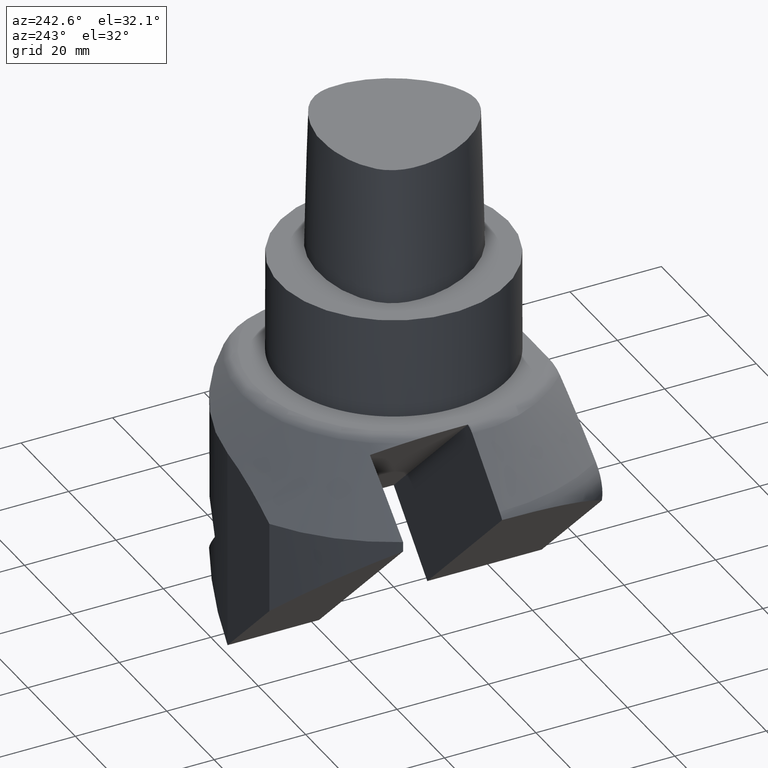
[diagram: clean part render]
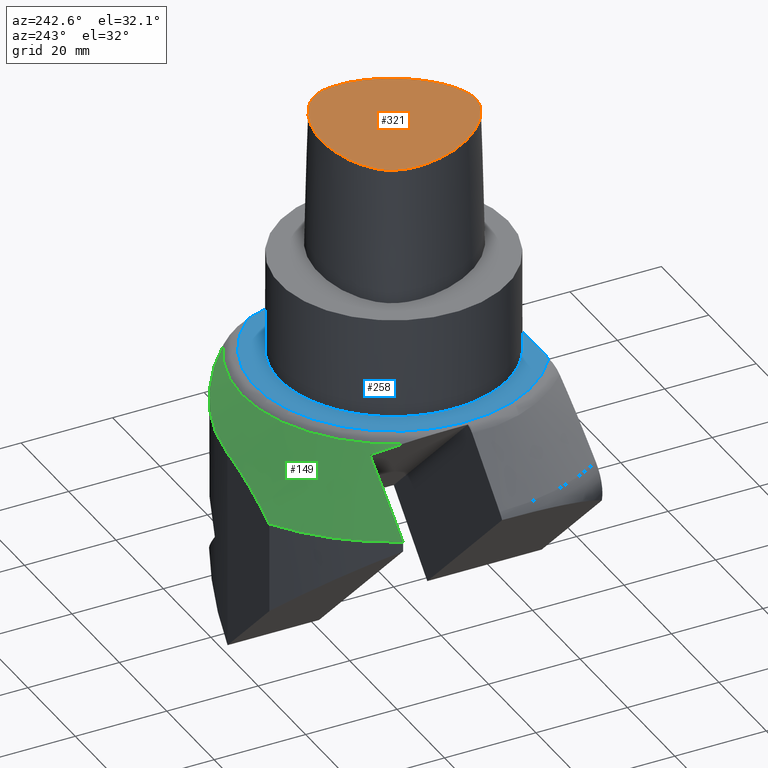
[diagram: same view with three faces highlighted in distinct colors, each labeled with its STEP entity id]
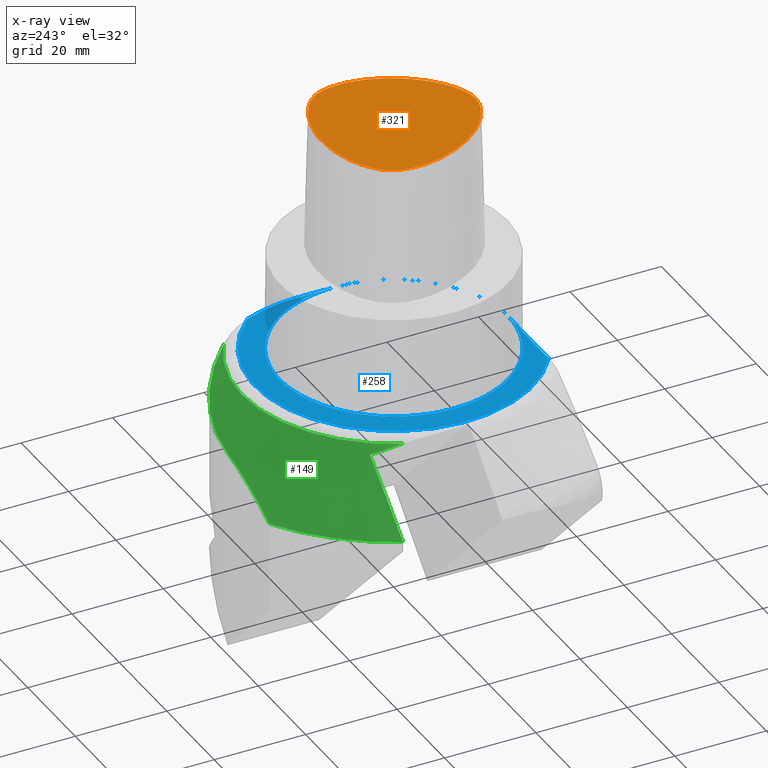
[diagram: x-ray of the same camera — body ghosted, the three highlighted faces saturated]
A machine part, auxiliary view with three faces highlighted in distinct colors.
The next image is the same camera in x-ray (body ghosted, the three faces saturated) — at least one of them is partly hidden behind the body in this view.
Their STEP definitions:

[orange] entity #321 — the highlighted planar face has unit normal (-0, -0, -1).
#235=EDGE_CURVE('240[2]',#497,#497,#526,.T.);
#321=ADVANCED_FACE('240[2]',(#627),#628,.F.);
#497=VERTEX_POINT('',#1023);
#526=B_SPLINE_CURVE_WITH_KNOTS('',3,(#1068,#1069,#1070,#1071,#1072,#1073,#1074,#1075,#1076,#1077,#1078,#1079,#1080,#1081,#1082,#1083,#1084,#1085,#1086,#1087,#1088,#1089,#1090,#1091,#1092,#1093,#1094,#1095,#1096,#1097,#1098,#1099,#1100,#1101,#1102,#1103,#1104,#1105,#1106,#1107,#1108,#1109,#1110,#1111,#1112,#1113,#1114,#1115,#1116),.UNSPECIFIED.,.T.,.F.,(4,1,1,1,1,1,1,1,1,1,1,1,1,1,1,1,1,1,1,1,1,1,1,1,1,1,1,1,1,1,1,1,1,1,1,1,1,1,1,1,1,1,1,1,1,1,4),(0.0,0.023135829350767,0.046149078767971,0.068686553945372,0.09058948843834,0.11187442371895,0.132659030725504,0.153111474090064,0.173428097006866,0.193812703683075,0.214465113334926,0.235566638619369,0.257256396596226,0.279590584305387,0.302476275092963,0.325611612149197,0.348735785989546,0.371826971229282,0.39455923139207,0.416669726533691,0.438154204641074,0.459103554741756,0.479643077908811,0.50010643098029,0.520399705216369,0.54092682403315,0.561890845659905,0.583370991138857,0.605476574502583,0.62820876493626,0.65131550684809,0.674427687768046,0.697531018602722,0.720425222070344,0.742763449220249,0.764449723968905,0.785551037463572,0.806204240231889,0.826588983931571,0.846905402970388,0.867357715119018,0.88814171778586,0.909429413217286,0.931324749020081,0.953885589892717,0.976862732393428,1.0),.UNSPECIFIED.);
#627=FACE_OUTER_BOUND('',#1724,.T.);
#628=PLANE('',#1725);
#1023=CARTESIAN_POINT('',(2.78602932413959E-015,-17.9423775546504,30.0));
#1068=CARTESIAN_POINT('',(2.78602932413959E-015,-17.9423775546504,30.0));
#1069=CARTESIAN_POINT('',(0.814120797978075,-17.9643878187761,30.0));
#1070=CARTESIAN_POINT('',(2.44279318309434,-17.6670056599032,30.0));
#1071=CARTESIAN_POINT('',(4.69065600148019,-16.7591312239375,30.0));
#1072=CARTESIAN_POINT('',(6.73157621234646,-15.527654017863,30.0));
#1073=CARTESIAN_POINT('',(8.55606567082544,-14.0980586872352,30.0));
#1074=CARTESIAN_POINT('',(10.1771160862307,-12.5294920614813,30.0));
#1075=CARTESIAN_POINT('',(11.6098311271326,-10.8549672983455,30.0));
#1076=CARTESIAN_POINT('',(12.8723444784573,-9.09084166630711,30.0));
#1077=CARTESIAN_POINT('',(13.9762474627415,-7.23982146073079,30.0));
#1078=CARTESIAN_POINT('',(14.9241349859217,-5.29636298798721,30.0));
#1079=CARTESIAN_POINT('',(15.7132736469777,-3.2533357158659,30.0));
#1080=CARTESIAN_POINT('',(16.3266313043064,-1.10238675181427,30.0));
#1081=CARTESIAN_POINT('',(16.7327867713303,1.15808256309649,30.0));
#1082=CARTESIAN_POINT('',(16.8801613787167,3.51564121263174,30.0));
#1083=CARTESIAN_POINT('',(16.6855836228514,5.92229128835704,30.0));
#1084=CARTESIAN_POINT('',(16.0281509658443,8.29517868854449,30.0));
#1085=CARTESIAN_POINT('',(14.6640408300166,10.3669104243273,30.0));
#1086=CARTESIAN_POINT('',(12.8332969997264,11.9882678763451,30.0));
#1087=CARTESIAN_POINT('',(10.7856401290832,13.2404482750702,30.0));
#1088=CARTESIAN_POINT('',(8.65298741417579,14.19764142693,30.0));
#1089=CARTESIAN_POINT('',(6.48957622042645,14.9235651413533,30.0));
#1090=CARTESIAN_POINT('',(4.30784954842127,15.2925809723717,30.0));
#1091=CARTESIAN_POINT('',(2.16867899857279,15.8525920055235,30.0));
#1092=CARTESIAN_POINT('',(0.0054980597270801,15.506533819507,30.0));
#1093=CARTESIAN_POINT('',(-2.15423811148254,15.6758925558313,30.0));
#1094=CARTESIAN_POINT('',(-4.31367631773855,15.3366483013887,30.0));
#1095=CARTESIAN_POINT('',(-6.49156913463884,14.9221231752341,30.0));
#1096=CARTESIAN_POINT('',(-8.65317555043793,14.199841033848,30.0));
#1097=CARTESIAN_POINT('',(-10.7855591317115,13.2388028674922,30.0));
#1098=CARTESIAN_POINT('',(-12.8289446834375,11.9844078416963,30.0));
#1099=CARTESIAN_POINT('',(-14.6809214389867,10.37934328945,30.0));
#1100=CARTESIAN_POINT('',(-15.9964040236072,8.28000660116028,30.0));
#1101=CARTESIAN_POINT('',(-16.6999197177274,5.92601467018833,30.0));
#1102=CARTESIAN_POINT('',(-16.8785470495877,3.51485696104406,30.0));
#1103=CARTESIAN_POINT('',(-16.7308989568545,1.15864914401017,30.0));
#1104=CARTESIAN_POINT('',(-16.3270119409732,-1.10262794482627,30.0));
#1105=CARTESIAN_POINT('',(-15.7138840293007,-3.25349612648562,30.0));
#1106=CARTESIAN_POINT('',(-14.9244427410538,-5.29647704660135,30.0));
#1107=CARTESIAN_POINT('',(-13.9756636589241,-7.23950698099948,30.0));
#1108=CARTESIAN_POINT('',(-12.8724663956831,-9.09088034657936,30.0));
#1109=CARTESIAN_POINT('',(-11.6099597844916,-10.8551381410581,30.0));
#1110=CARTESIAN_POINT('',(-10.1759690661341,-12.5282962499649,30.0));
#1111=CARTESIAN_POINT('',(-8.55887653552809,-14.1013446755591,30.0));
#1112=CARTESIAN_POINT('',(-6.72595297076831,-15.5205541881092,30.0));
#1113=CARTESIAN_POINT('',(-4.69995925068727,-16.7729025475684,30.0));
#1114=CARTESIAN_POINT('',(-2.43523789305481,-17.660279021922,30.0));
#1115=CARTESIAN_POINT('',(-0.814171408394767,-17.9203659222405,30.0));
#1116=CARTESIAN_POINT('',(2.83508942413959E-015,-17.9423775546504,30.0));
#1724=EDGE_LOOP('',(#2065));
#1725=AXIS2_PLACEMENT_3D('',#2066,#2067,#2068);
#2065=ORIENTED_EDGE('',*,*,#235,.T.);
#2066=CARTESIAN_POINT('',(0.000657534264248203,-1.65575572608802,30.0));
#2067=DIRECTION('',(-0.0,-0.0,-1.0));
#2068=DIRECTION('',(0.0,-1.0,0.0));

[blue] entity #258 — the highlighted planar face has unit normal (-0, -0, -1).
#184=EDGE_CURVE('240[2]',#455,#455,#456,.T.);
#193=EDGE_CURVE('240[2]',#452,#468,#469,.T.);
#203=EDGE_CURVE('240[2]',#482,#475,#483,.T.);
#205=EDGE_CURVE('240[2]',#485,#475,#486,.T.);
#241=EDGE_CURVE('240[2]',#468,#485,#532,.T.);
#258=ADVANCED_FACE('240[2]',(#553,#554),#555,.F.);
#289=EDGE_CURVE('240[2]',#482,#423,#590,.T.);
#333=EDGE_CURVE('240[2]',#423,#452,#642,.T.);
#423=VERTEX_POINT('',#806);
#452=VERTEX_POINT('',#952);
#455=VERTEX_POINT('',#957);
#456=CIRCLE('',#958,24.9899999999972);
#468=VERTEX_POINT('',#976);
#469=CIRCLE('',#977,25.0);
#475=VERTEX_POINT('',#985);
#482=VERTEX_POINT('',#1003);
#483=CIRCLE('',#1004,30.3429950186847);
#485=VERTEX_POINT('',#1007);
#486=LINE('',#1008,#1009);
#532=CIRCLE('',#1125,25.0001636640277);
#553=FACE_OUTER_BOUND('',#1156,.T.);
#554=FACE_BOUND('',#1157,.T.);
#555=PLANE('',#1158);
#590=CIRCLE('',#1254,32.0);
#642=LINE('',#1746,#1747);
#806=CARTESIAN_POINT('',(25.0000000000001,8.00000000000004,-21.9999999890819));
#952=CARTESIAN_POINT('',(25.0000000000001,4.06863801801481E-014,-21.999999989082));
#957=CARTESIAN_POINT('',(4.40750382946244E-015,-24.9899999999971,-21.999999989082));
#958=AXIS2_PLACEMENT_3D('',#1850,#1851,#1852);
#976=CARTESIAN_POINT('',(14.999999999999,-20.0000000000007,-21.999999989082));
#977=AXIS2_PLACEMENT_3D('',#1868,#1869,#1870);
#985=CARTESIAN_POINT('',(-17.1958526017904,-25.0000000000284,-21.999999989082));
#1003=CARTESIAN_POINT('',(22.5324903971799,20.3220132665276,-21.9999999890819));
#1004=AXIS2_PLACEMENT_3D('',#1888,#1889,#1890);
#1007=CARTESIAN_POINT('',(-5.45546560060439E-005,-25.0000000000595,-21.999999989082));
#1008=CARTESIAN_POINT('',(-5.45546560068999E-005,-25.0000000000595,-21.999999989082));
#1009=VECTOR('',#1891,17.1957980471344);
#1125=AXIS2_PLACEMENT_3D('',#1945,#1946,#1947);
#1156=EDGE_LOOP('',(#1977,#1978,#1979,#1980,#1981,#1982));
#1157=EDGE_LOOP('',(#1983));
#1158=AXIS2_PLACEMENT_3D('',#1984,#1985,#1986);
#1254=AXIS2_PLACEMENT_3D('',#2030,#2031,#2032);
#1746=CARTESIAN_POINT('',(25.0000000000001,8.00000000000004,-21.999999989082));
#1747=VECTOR('',#2087,8.0);
#1850=CARTESIAN_POINT('',(1.34711147839355E-015,4.15277125529693E-014,-21.999999989082));
#1851=DIRECTION('',(0.0,0.0,1.0));
#1852=DIRECTION('',(0.0,-1.0,0.0));
#1868=CARTESIAN_POINT('',(5.81905303392016E-014,4.06862790668356E-014,-21.999999989082));
#1869=DIRECTION('',(0.0,-0.0,-1.0));
#1870=DIRECTION('',(0.599999999999959,-0.800000000000031,0.0));
#1888=CARTESIAN_POINT('',(1.34711147839355E-015,4.15277125529693E-014,-21.9999999890819));
#1889=DIRECTION('',(0.0,0.0,1.0));
#1890=DIRECTION('',(0.0,-1.0,0.0));
#1891=DIRECTION('',(-1.0,1.8054571573543E-012,0.0));
#1945=CARTESIAN_POINT('',(-5.45546560117042E-005,0.000163663968252502,-21.999999989082));
#1946=DIRECTION('',(-0.0,-0.0,-1.0));
#1947=DIRECTION('',(0.0,-1.0,0.0));
#1977=ORIENTED_EDGE('',*,*,#289,.F.);
#1978=ORIENTED_EDGE('',*,*,#203,.T.);
#1979=ORIENTED_EDGE('',*,*,#205,.F.);
#1980=ORIENTED_EDGE('',*,*,#241,.F.);
#1981=ORIENTED_EDGE('',*,*,#193,.F.);
#1982=ORIENTED_EDGE('',*,*,#333,.F.);
#1983=ORIENTED_EDGE('',*,*,#184,.F.);
#1984=CARTESIAN_POINT('',(4.73528024023681E-015,-27.6664975093409,-21.999999989082));
#1985=DIRECTION('',(-0.0,-0.0,-1.0));
#1986=DIRECTION('',(0.0,-1.0,0.0));
#2030=CARTESIAN_POINT('',(-6.99999999999994,8.00000000000004,-21.9999999890819));
#2031=DIRECTION('',(0.0,0.0,-1.0));
#2032=DIRECTION('',(0.341966861654551,0.939712012017585,0.0));
#2087=DIRECTION('',(0.0,-1.0,0.0));

[green] entity #149 — the highlighted conical surface has half-angle 45 deg.
#140=EDGE_CURVE('240[2]',#389,#390,#391,.T.);
#149=ADVANCED_FACE('240[2]',(#401),#402,.T.);
#151=EDGE_CURVE('240[2]',#404,#405,#406,.T.);
#166=EDGE_CURVE('240[2]',#405,#353,#429,.T.);
#227=EDGE_CURVE('240[2]',#515,#404,#516,.T.);
#260=EDGE_CURVE('240[2]',#389,#353,#557,.F.);
#273=EDGE_CURVE('240[2]',#390,#515,#572,.T.);
#353=VERTEX_POINT('',#653);
#389=VERTEX_POINT('',#748);
#390=VERTEX_POINT('',#749);
#391=(B_SPLINE_CURVE(3,(#751,#752,#753,#754,#755,#756,#757,#758,#759,#760),.UNSPECIFIED.,.F.,.F.)B_SPLINE_CURVE_WITH_KNOTS((4,3,3,4),(-0.446402697115081,-0.105403841107397,7.8159700933611E-014,1.28430067544593),.UNSPECIFIED.)RATIONAL_B_SPLINE_CURVE((1.0,1.0,1.0,1.0,1.0,1.0,1.0,1.02443837876157,1.041181833911,1.05023036544827))BOUNDED_CURVE()REPRESENTATION_ITEM('')GEOMETRIC_REPRESENTATION_ITEM()CURVE());
#401=FACE_OUTER_BOUND('',#778,.T.);
#402=CONICAL_SURFACE('',#779,38.9141307565133,0.785399917008567);
#404=VERTEX_POINT('',#782);
#405=VERTEX_POINT('',#783);
#406=CIRCLE('',#784,54.8406231287357);
#429=(B_SPLINE_CURVE(2,(#817,#818,#819),.UNSPECIFIED.,.F.,.F.)B_SPLINE_CURVE_WITH_KNOTS((3,3),(961.816128941274,1036.44478085887),.UNSPECIFIED.)RATIONAL_B_SPLINE_CURVE((8.58173361721347,7.8803555158201,7.02449035713792))BOUNDED_CURVE()REPRESENTATION_ITEM('')GEOMETRIC_REPRESENTATION_ITEM()CURVE());
#515=VERTEX_POINT('',#1054);
#516=CIRCLE('',#1055,33.1714171834653);
#557=CIRCLE('',#1161,47.0);
#572=B_SPLINE_CURVE_WITH_KNOTS('',3,(#1185,#1186,#1187,#1188,#1189,#1190,#1191,#1192,#1193,#1194,#1195,#1196,#1197,#1198),.UNSPECIFIED.,.F.,.F.,(4,2,2,2,2,2,4),(10.5517457554755,10.8035046971701,11.3874829203842,11.9714611435983,12.5554393668125,13.1394175900266,13.4298209830468),.UNSPECIFIED.);
#653=CARTESIAN_POINT('',(-42.5323406362735,20.0,-37.0001022210855));
#748=CARTESIAN_POINT('',(-24.6779253585061,40.0000000000001,-37.0001022210854));
#749=CARTESIAN_POINT('',(-6.99999999999994,40.0000000000001,-30.6080056481218));
#751=CARTESIAN_POINT('',(-24.6779253585061,40.0000000000001,-37.0001022210854));
#752=CARTESIAN_POINT('',(-23.460462627012,40.0000000000001,-36.3608607521029));
#753=CARTESIAN_POINT('',(-22.2332309242459,40.0000000000001,-35.7507821339145));
#754=CARTESIAN_POINT('',(-20.9999999999999,40.0000000000001,-35.1775366055453));
#755=CARTESIAN_POINT('',(-20.6188043622494,40.0000000000001,-35.0003445724247));
#756=CARTESIAN_POINT('',(-20.2372077288533,40.0000000000001,-34.8267488980639));
#757=CARTESIAN_POINT('',(-19.8553203317067,40.0000000000001,-34.6569547686002));
#758=CARTESIAN_POINT('',(-15.3131882461113,40.0000000000001,-32.6374396729325));
#759=CARTESIAN_POINT('',(-11.0638841114396,40.0000000000001,-31.3085368825314));
#760=CARTESIAN_POINT('',(-6.99999999999994,40.0000000000001,-30.6080056481218));
#778=EDGE_LOOP('',(#1796,#1797,#1798,#1799,#1800,#1801));
#779=AXIS2_PLACEMENT_3D('',#1802,#1803,#1804);
#782=CARTESIAN_POINT('',(-30.2010154359409,13.7201160562714,-23.1715679043788));
#783=CARTESIAN_POINT('',(-28.5302731405749,20.0,-24.8423101997449));
#784=AXIS2_PLACEMENT_3D('',#1805,#1806,#1807);
#817=CARTESIAN_POINT('',(-28.5302731405743,20.0,-24.8423101997445));
#818=CARTESIAN_POINT('',(-34.4912878417242,20.0,-29.723429943493));
#819=CARTESIAN_POINT('',(-42.5323406359578,20.0,-37.0001022207998));
#1054=CARTESIAN_POINT('',(18.1828670417911,27.7439410340357,-23.1715679043788));
#1055=AXIS2_PLACEMENT_3D('',#1915,#1916,#1917);
#1161=AXIS2_PLACEMENT_3D('',#1987,#1988,#1989);
#1185=CARTESIAN_POINT('',(-6.99999999999994,40.0000000000001,-30.6080056481218));
#1186=CARTESIAN_POINT('',(-6.15278571767169,40.0000000000001,-30.4619630812734));
#1187=CARTESIAN_POINT('',(-5.31540770635421,39.9662636454143,-30.3101779597808));
#1188=CARTESIAN_POINT('',(-2.58668797581844,39.7518611293999,-29.7917677167439));
#1189=CARTESIAN_POINT('',(-0.632744338119435,39.4235671704168,-29.3808426066179));
#1190=CARTESIAN_POINT('',(3.22208990378041,38.3890012417039,-28.4750573882843));
#1191=CARTESIAN_POINT('',(5.12301109824798,37.6829017932742,-27.9801304259728));
#1192=CARTESIAN_POINT('',(8.74284044890746,35.9321510796684,-26.9296720638691));
#1193=CARTESIAN_POINT('',(10.4642315285366,34.8863537876034,-26.3733245762233));
#1194=CARTESIAN_POINT('',(13.6281053059643,32.5429557011205,-25.2310956697552));
#1195=CARTESIAN_POINT('',(15.0705286115125,31.2453247759313,-24.6451115592169));
#1196=CARTESIAN_POINT('',(16.973872048514,29.2157358249586,-23.7773690769956));
#1197=CARTESIAN_POINT('',(17.5911000340095,28.4987239748372,-23.4784766149382));
#1198=CARTESIAN_POINT('',(18.1828670417911,27.7439410340357,-23.1715679043788));
#1796=ORIENTED_EDGE('',*,*,#166,.F.);
#1797=ORIENTED_EDGE('',*,*,#151,.F.);
#1798=ORIENTED_EDGE('',*,*,#227,.F.);
#1799=ORIENTED_EDGE('',*,*,#273,.F.);
#1800=ORIENTED_EDGE('',*,*,#140,.F.);
#1801=ORIENTED_EDGE('',*,*,#260,.T.);
#1802=CARTESIAN_POINT('',(1.77048787977209E-015,5.45792333663211E-014,-28.9142613364894));
#1803=DIRECTION('',(-0.0,-0.0,-1.0));
#1804=DIRECTION('',(0.0,-1.0,0.0));
#1805=CARTESIAN_POINT('',(6.86061905028499,-2.41569639825201,-60.2332023905946));
#1806=DIRECTION('',(-0.707106781186464,-5.71175918988948E-014,-0.707106781186631));
#1807=DIRECTION('',(-0.675806224871397,0.294231019524439,0.675806224871213));
#1915=CARTESIAN_POINT('',(1.41884932326615E-015,4.37391914460091E-014,-23.1715679043789));
#1916=DIRECTION('',(0.0,0.0,1.0));
#1917=DIRECTION('',(0.0,-1.0,0.0));
#1987=CARTESIAN_POINT('',(3.56108365114157E-015,1.09778337289531E-013,-37.0001022210854));
#1988=DIRECTION('',(0.0,-0.0,-1.0));
#1989=DIRECTION('',(0.0,-1.0,0.0));